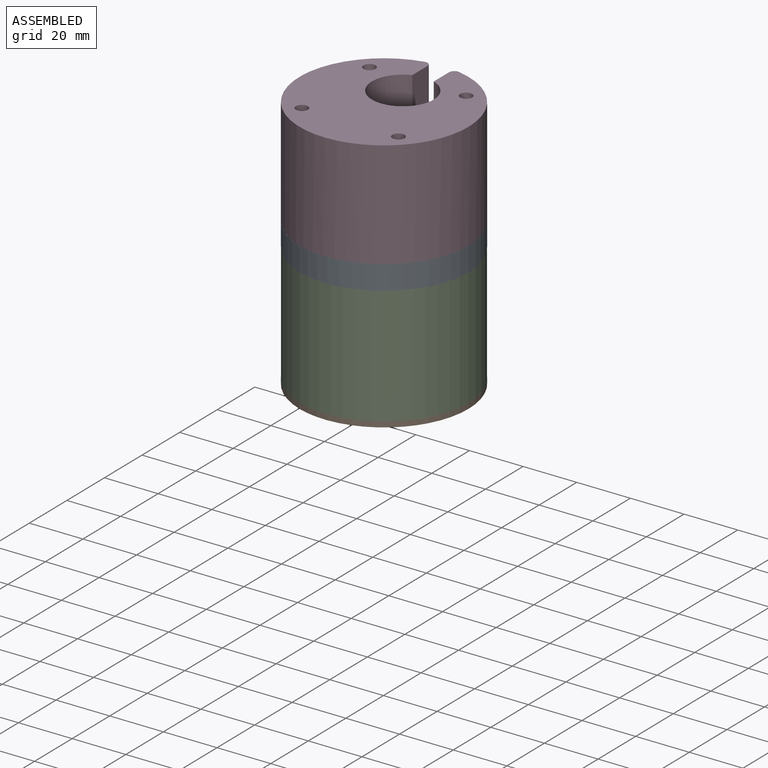
[diagram: assembled view]
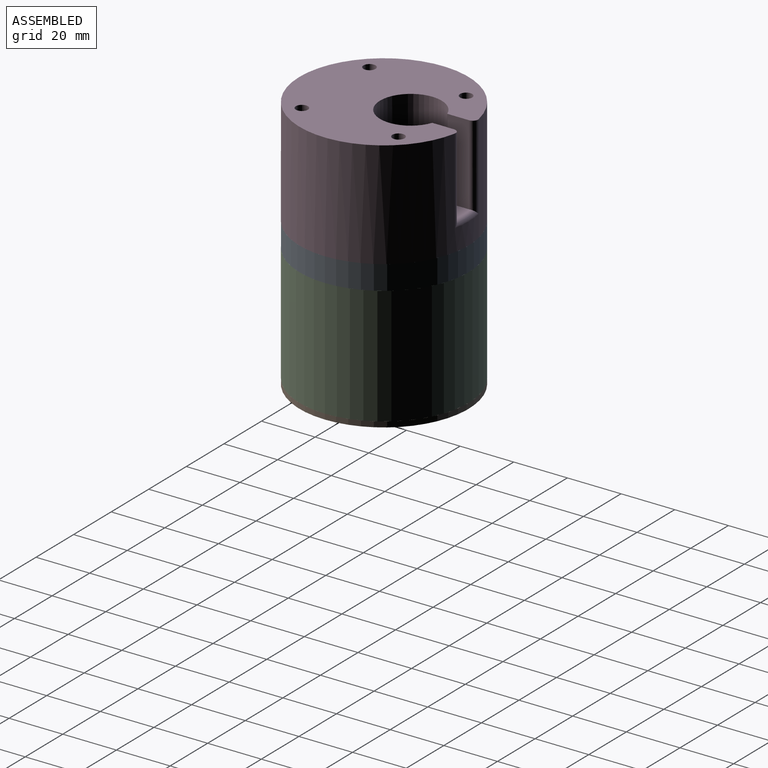
[diagram: assembled view, second angle]
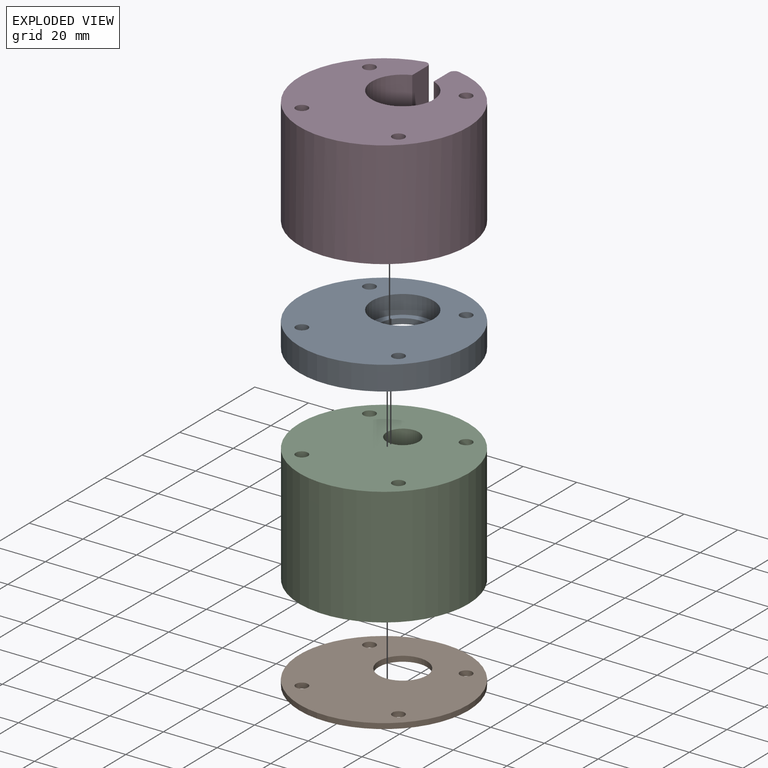
[diagram: exploded view]
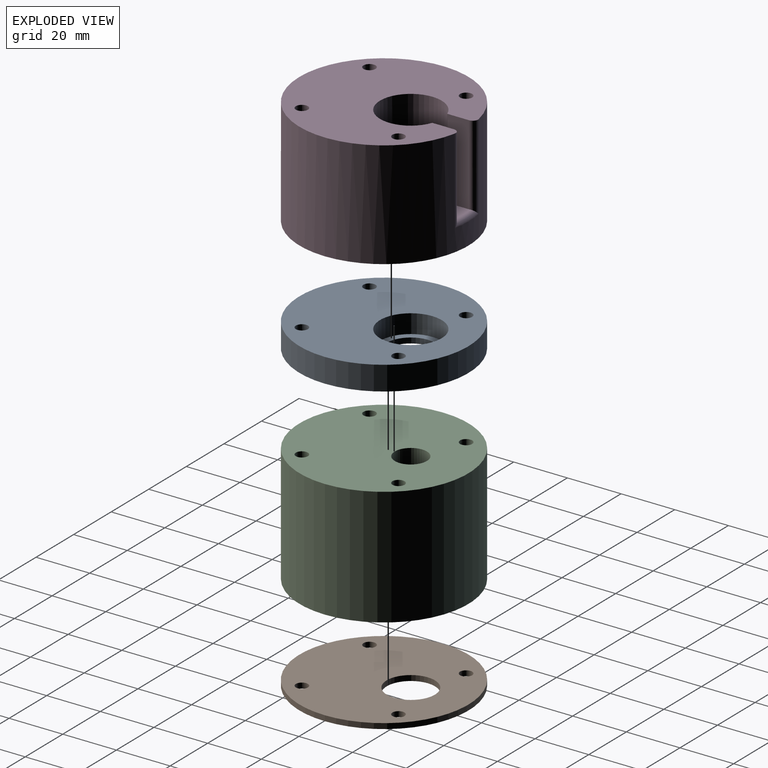
[diagram: exploded view, second angle]
ASSEMBLY  parts=4 mates=3
PART A: 10 faces, bbox 63x63x9 mm
  f0: cylinder r=2.25mm len=9mm, axis (0,0,-1), area 127.2mm2, adj f6,f9
  f1: cylinder r=11.5mm len=23mm, axis (0,0,-1), area 505.8mm2, adj f6,f7
  f2: cylinder r=31.5mm len=63mm, axis (0,0,-1), area 1781.3mm2, adj f6,f9
  f3: cylinder r=2.25mm len=9mm, axis (0,0,-1), area 127.2mm2, adj f6,f9
  f4: cylinder r=2.25mm len=9mm, axis (0,0,-1), area 127.2mm2, adj f6,f9
  f5: cylinder r=2.25mm len=9mm, axis (0,0,-1), area 127.2mm2, adj f6,f9
  f6: plane 63x63mm, normal (0,0,1), area 2638.2mm2, adj f0,f1,f2,f3,f4,f5
  f7: plane 23x23mm, normal (0,0,1), area 161mm2, adj f1,f8
  f8: cylinder r=9mm len=18mm, axis (0,0,1), area 113.1mm2, adj f7,f9
  f9: plane 63x63mm, normal (0,0,-1), area 2799.2mm2, adj f0,f2,f3,f4,f5,f8
PART B: 8 faces, bbox 63x63x2 mm
  f0: cylinder r=2.25mm len=4.5mm, axis (0,0,1), area 28.3mm2, adj f6,f7
  f1: cylinder r=2.25mm len=4.5mm, axis (0,0,1), area 28.3mm2, adj f6,f7
  f2: cylinder r=31.5mm len=63mm, axis (0,0,1), area 395.8mm2, adj f6,f7
  f3: cylinder r=2.25mm len=4.5mm, axis (0,0,1), area 28.3mm2, adj f6,f7
  f4: cylinder r=2.25mm len=4.5mm, axis (0,0,1), area 28.3mm2, adj f6,f7
  f5: cylinder r=9mm len=18mm, axis (0,0,1), area 113.1mm2, adj f6,f7
  f6: plane 63x63mm, normal (0,0,-1), area 2799.2mm2, adj f0,f1,f2,f3,f4,f5
  f7: plane 63x63mm, normal (0,0,1), area 2799.2mm2, adj f0,f1,f2,f3,f4,f5
PART C: 12 faces, bbox 63x63x44 mm
  f0: plane 18x18mm, normal (0,0,1), area 141.4mm2, adj f6,f10
  f1: cylinder r=2.25mm len=44mm, axis (0,0,1), area 622mm2, adj f7,f9
  f2: cylinder r=2.25mm len=44mm, axis (0,0,1), area 622mm2, adj f7,f9
  f3: cylinder r=31.5mm len=63mm, axis (0,0,1), area 8708.5mm2, adj f7,f9
  f4: cylinder r=2.25mm len=44mm, axis (0,0,1), area 622mm2, adj f7,f9
  f5: cylinder r=2.25mm len=44mm, axis (0,0,1), area 622mm2, adj f7,f9
  f6: cylinder r=6mm len=35mm, axis (0,0,1), area 1319.5mm2, adj f0,f7
  f7: plane 63x63mm, normal (0,0,-1), area 2940.5mm2, adj f1,f2,f3,f4,f5,f6
  f8: cylinder r=11.5mm len=23mm, axis (0,0,-1), area 505.8mm2, adj f9,f11
  f9: plane 63x63mm, normal (0,0,1), area 2638.2mm2, adj f1,f2,f3,f4,f5,f8
  f10: cylinder r=9mm len=18mm, axis (0,0,-1), area 113.1mm2, adj f0,f11
  f11: plane 23x23mm, normal (0,0,1), area 161mm2, adj f8,f10
PART D: 16 faces, bbox 63x65.6x40 mm
  f0: plane 63x62.38mm, normal (0,0,1), area 2554.4mm2, adj f1,f2,f3,f4,f5,f6,f11,f12
  f1: cylinder r=2.25mm len=40mm, axis (0,0,-1), area 565.5mm2, adj f0,f9
  f2: cylinder r=11.5mm len=38mm, axis (0,0,-1), area 2500.6mm2, adj f0,f7,f10,f11,f12
  f3: cylinder r=31.5mm len=63mm, axis (0,0,-1), area 7503.9mm2, adj f0,f9,f13,f14,f15
  f4: cylinder r=2.25mm len=40mm, axis (0,0,-1), area 565.5mm2, adj f0,f9
  f5: cylinder r=2.25mm len=40mm, axis (0,0,-1), area 565.5mm2, adj f0,f9
  f6: cylinder r=2.25mm len=40mm, axis (0,0,-1), area 565.5mm2, adj f0,f9
  f7: plane 23x23mm, normal (0,0,1), area 161mm2, adj f2,f8
  f8: cylinder r=9mm len=18mm, axis (0,0,1), area 113.1mm2, adj f7,f9
  f9: plane 63x63mm, normal (0,0,-1), area 2799.2mm2, adj f1,f3,f4,f5,f6,f8
  f10: plane 8.72x8.06mm, normal (0,0,1), area 65.2mm2, adj f2,f11,f12,f13,f14,f15
  f11: plane 30x8.1mm, normal (-1,0,0), area 243mm2, adj f0,f2,f10,f14
  f12: plane 30x8.1mm, normal (1,0,0), area 243mm2, adj f0,f2,f10,f13
  f13: cylinder r=2mm len=32mm, axis (0,0,-1), area 108.9mm2, adj f0,f3,f10,f12,f15
  f14: cylinder r=2mm len=32mm, axis (0,0,-1), area 108.9mm2, adj f0,f3,f10,f11,f15
  f15: torus R=29.5mm, axis (0,0,-1), area 31.5mm2, adj f3,f10,f13,f14
PLACE A rot(axis=(0,1,0),0deg) t=(-1.6,9.6,27.58)mm
PLACE B t=(-1.6,9.6,-18.42)mm fixed
PLACE C rot(axis=(0,1,0),180deg) t=(-1.6,9.6,-9.42)mm
PLACE D rot(axis=(0,1,0),0deg) t=(-1.6,9.6,36.58)mm
MATE fastened C.f6 <-> A.f1  axis (0,0,1) through (-1.6,12.6,25.58)mm
MATE fastened A.f1 <-> D.f2  axis (0,0,1) through (-1.6,12.6,34.58)mm
MATE fastened B.f5 <-> C.f6  axis (0,0,1) through (-1.6,12.6,-18.42)mm
